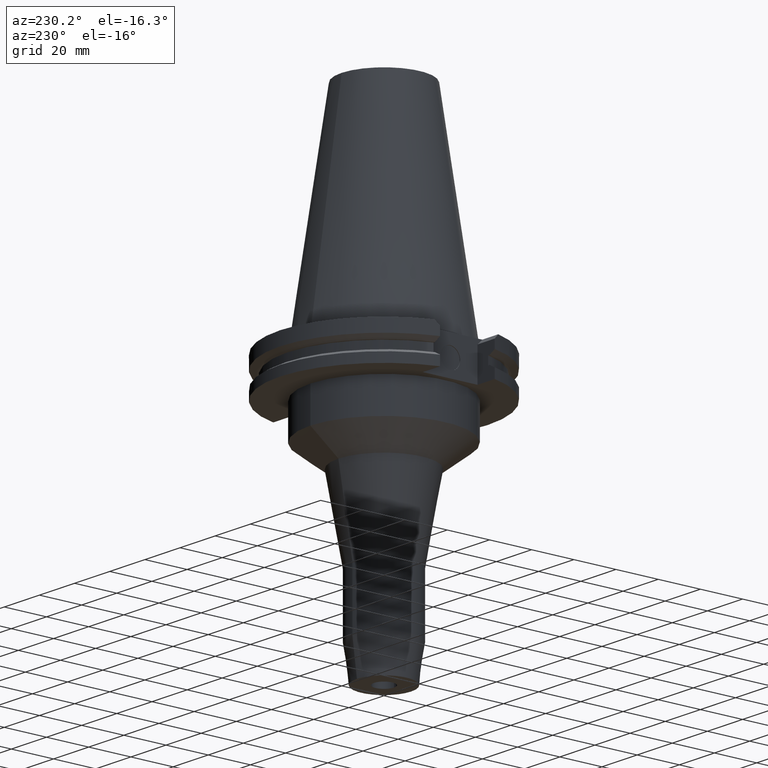
[diagram: clean part render]
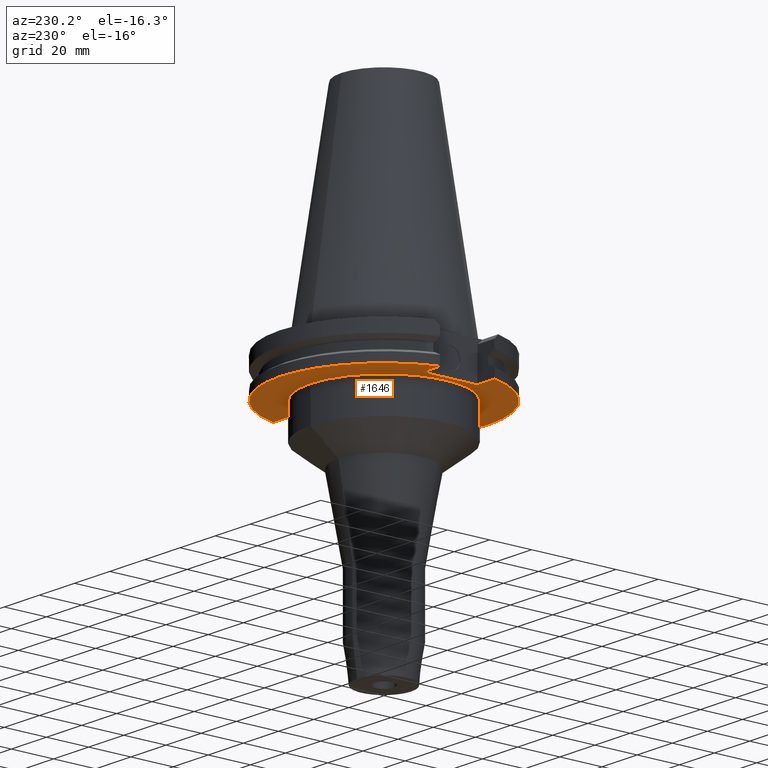
[diagram: same view with one face highlighted and labeled with its STEP entity id]
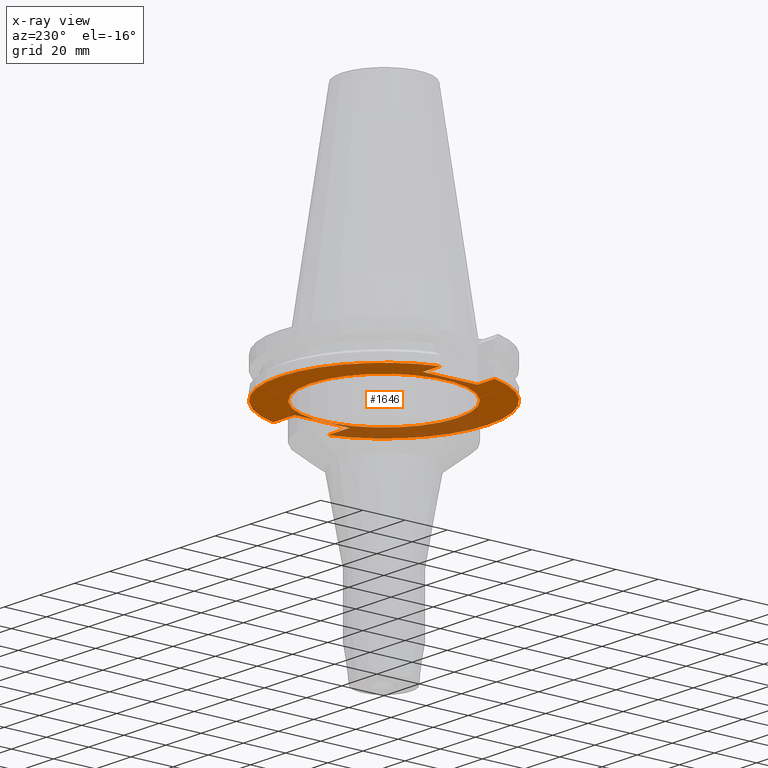
[diagram: x-ray of the same camera — body ghosted, the highlighted face saturated]
A machine part, auxiliary view. The second image highlights one B-rep face of the part: STEP entity #1646.
The next image is the same camera in x-ray: the body ghosted, the highlighted face saturated — about 27% of this face is hidden behind the body in this view.
In plain terms, the highlighted planar face has unit normal (0, 0, 1).
Its self-contained STEP definition (entity closure, byte-faithful):
#138=DIRECTION('',(0.E0,-1.E0,0.E0));
#139=VECTOR('',#138,2.591E1);
#140=CARTESIAN_POINT('',(3.527E1,1.2955E1,-1.905E1));
#141=LINE('',#140,#139);
#173=DIRECTION('',(1.E0,1.469781941986E-14,0.E0));
#174=VECTOR('',#173,1.220671146204E1);
#175=CARTESIAN_POINT('',(3.527E1,1.2955E1,-1.905E1));
#176=LINE('',#175,#174);
#180=CARTESIAN_POINT('',(0.E0,0.E0,-1.905E1));
#181=DIRECTION('',(0.E0,0.E0,1.E0));
#182=DIRECTION('',(9.647287063661E-1,2.632461264923E-1,0.E0));
#183=AXIS2_PLACEMENT_3D('',#180,#181,#182);
#188=CARTESIAN_POINT('',(0.E0,0.E0,-1.905E1));
#189=DIRECTION('',(0.E0,0.E0,1.E0));
#190=DIRECTION('',(0.E0,1.E0,0.E0));
#191=AXIS2_PLACEMENT_3D('',#188,#189,#190);
#196=DIRECTION('',(-1.E0,-1.831349647018E-14,0.E0));
#197=VECTOR('',#196,9.796711462041E0);
#198=CARTESIAN_POINT('',(-3.768E1,-1.2955E1,-1.905E1));
#199=LINE('',#198,#197);
#203=CARTESIAN_POINT('',(0.E0,0.E0,-1.905E1));
#204=DIRECTION('',(0.E0,0.E0,1.E0));
#205=DIRECTION('',(-9.647287063661E-1,-2.632461264923E-1,0.E0));
#206=AXIS2_PLACEMENT_3D('',#203,#204,#205);
#211=CARTESIAN_POINT('',(0.E0,0.E0,-1.905E1));
#212=DIRECTION('',(0.E0,0.E0,1.E0));
#213=DIRECTION('',(0.E0,-1.E0,0.E0));
#214=AXIS2_PLACEMENT_3D('',#211,#212,#213);
#219=CARTESIAN_POINT('',(0.E0,0.E0,-1.905E1));
#220=DIRECTION('',(0.E0,0.E0,-1.E0));
#221=DIRECTION('',(0.E0,-1.E0,0.E0));
#222=AXIS2_PLACEMENT_3D('',#219,#220,#221);
#227=CARTESIAN_POINT('',(0.E0,0.E0,-1.905E1));
#228=DIRECTION('',(0.E0,0.E0,-1.E0));
#229=DIRECTION('',(0.E0,1.E0,0.E0));
#230=AXIS2_PLACEMENT_3D('',#227,#228,#229);
#286=DIRECTION('',(0.E0,1.E0,0.E0));
#287=VECTOR('',#286,2.591E1);
#288=CARTESIAN_POINT('',(-3.768E1,-1.2955E1,-1.905E1));
#289=LINE('',#288,#287);
#323=DIRECTION('',(-1.E0,1.813217472295E-14,0.E0));
#324=VECTOR('',#323,9.796711462041E0);
#325=CARTESIAN_POINT('',(-3.768E1,1.2955E1,-1.905E1));
#326=LINE('',#325,#324);
#573=DIRECTION('',(1.E0,-1.498886534897E-14,0.E0));
#574=VECTOR('',#573,1.220671146204E1);
#575=CARTESIAN_POINT('',(3.527E1,-1.2955E1,-1.905E1));
#576=LINE('',#575,#574);
#1320=CARTESIAN_POINT('',(3.527E1,1.2955E1,-1.905E1));
#1321=CARTESIAN_POINT('',(3.527E1,-1.2955E1,-1.905E1));
#1322=VERTEX_POINT('',#1320);
#1323=VERTEX_POINT('',#1321);
#1328=CARTESIAN_POINT('',(4.747671146204E1,1.2955E1,-1.905E1));
#1329=VERTEX_POINT('',#1328);
#1330=CARTESIAN_POINT('',(0.E0,4.92125E1,-1.905E1));
#1331=CARTESIAN_POINT('',(-4.747671146204E1,1.2955E1,-1.905E1));
#1332=VERTEX_POINT('',#1330);
#1333=VERTEX_POINT('',#1331);
#1334=CARTESIAN_POINT('',(-3.768E1,1.2955E1,-1.905E1));
#1335=VERTEX_POINT('',#1334);
#1336=CARTESIAN_POINT('',(-3.768E1,-1.2955E1,-1.905E1));
#1337=VERTEX_POINT('',#1336);
#1338=CARTESIAN_POINT('',(-4.747671146204E1,-1.2955E1,-1.905E1));
#1339=VERTEX_POINT('',#1338);
#1340=CARTESIAN_POINT('',(0.E0,-4.92125E1,-1.905E1));
#1341=CARTESIAN_POINT('',(4.747671146204E1,-1.2955E1,-1.905E1));
#1342=VERTEX_POINT('',#1340);
#1343=VERTEX_POINT('',#1341);
#1344=CARTESIAN_POINT('',(0.E0,-3.4925E1,-1.905E1));
#1345=CARTESIAN_POINT('',(0.E0,3.4925E1,-1.905E1));
#1346=VERTEX_POINT('',#1344);
#1347=VERTEX_POINT('',#1345);
#1614=CARTESIAN_POINT('',(0.E0,0.E0,-1.905E1));
#1615=DIRECTION('',(0.E0,0.E0,1.E0));
#1616=DIRECTION('',(0.E0,1.E0,0.E0));
#1617=AXIS2_PLACEMENT_3D('',#1614,#1615,#1616);
#1618=PLANE('',#1617);
#1619=ORIENTED_EDGE('',*,*,#1600,.F.);
#1621=ORIENTED_EDGE('',*,*,#1620,.T.);
#1623=ORIENTED_EDGE('',*,*,#1622,.T.);
#1625=ORIENTED_EDGE('',*,*,#1624,.T.);
#1627=ORIENTED_EDGE('',*,*,#1626,.F.);
#1629=ORIENTED_EDGE('',*,*,#1628,.F.);
#1631=ORIENTED_EDGE('',*,*,#1630,.T.);
#1633=ORIENTED_EDGE('',*,*,#1632,.T.);
#1635=ORIENTED_EDGE('',*,*,#1634,.T.);
#1637=ORIENTED_EDGE('',*,*,#1636,.F.);
#1638=EDGE_LOOP('',(#1619,#1621,#1623,#1625,#1627,#1629,#1631,#1633,#1635,
#1637));
#1639=FACE_OUTER_BOUND('',#1638,.F.);
#1641=ORIENTED_EDGE('',*,*,#1640,.T.);
#1643=ORIENTED_EDGE('',*,*,#1642,.T.);
#1644=EDGE_LOOP('',(#1641,#1643));
#1645=FACE_BOUND('',#1644,.F.);
#184=CIRCLE('',#183,4.92125E1);
#192=CIRCLE('',#191,4.92125E1);
#207=CIRCLE('',#206,4.92125E1);
#215=CIRCLE('',#214,4.92125E1);
#223=CIRCLE('',#222,3.4925E1);
#231=CIRCLE('',#230,3.4925E1);
#1600=EDGE_CURVE('',#1322,#1323,#141,.T.);
#1620=EDGE_CURVE('',#1322,#1329,#176,.T.);
#1622=EDGE_CURVE('',#1329,#1332,#184,.T.);
#1624=EDGE_CURVE('',#1332,#1333,#192,.T.);
#1626=EDGE_CURVE('',#1335,#1333,#326,.T.);
#1628=EDGE_CURVE('',#1337,#1335,#289,.T.);
#1630=EDGE_CURVE('',#1337,#1339,#199,.T.);
#1632=EDGE_CURVE('',#1339,#1342,#207,.T.);
#1634=EDGE_CURVE('',#1342,#1343,#215,.T.);
#1636=EDGE_CURVE('',#1323,#1343,#576,.T.);
#1640=EDGE_CURVE('',#1346,#1347,#223,.T.);
#1642=EDGE_CURVE('',#1347,#1346,#231,.T.);
#1646=ADVANCED_FACE('',(#1639,#1645),#1618,.F.);